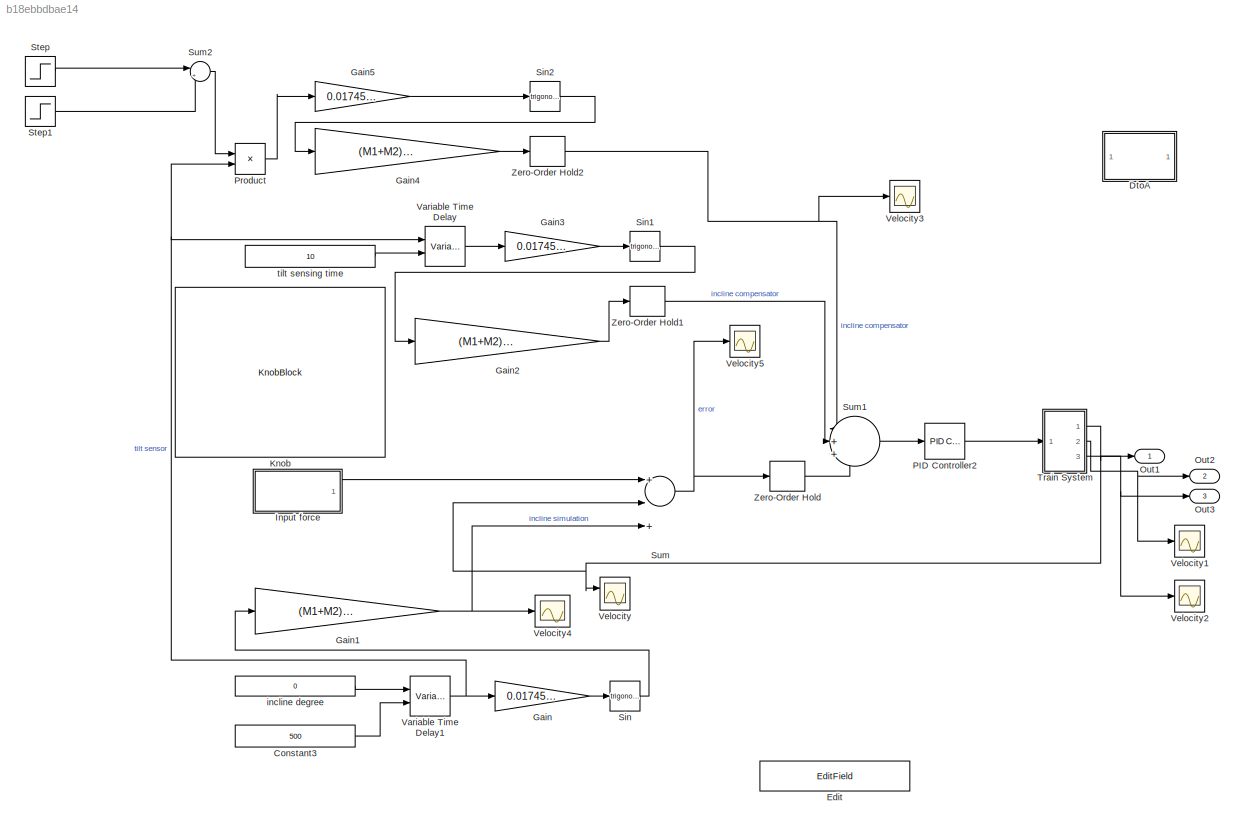
MODEL slx_b18ebbdbae14
KIND model
CONFIG AbsTol = auto
CONFIG EnableMultiTasking = off
CONFIG FixedStep = auto
CONFIG MaxStep = auto
CONFIG MinStep = auto
CONFIG RelTol = 1e-3
CONFIG SampleTimeConstraint = Unconstrained
CONFIG Solver = VariableStepAuto
CONFIG SolverName = VariableStepAuto
CONFIG StartTime = 0.0
CONFIG StopTime = 1000
BLOCK [Constant] Constant3
  Value = 500
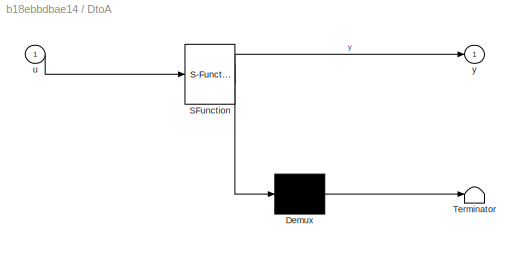
BLOCK [SubSystem] DtoA
  Commented = on
  ErrorFcn = Stateflow.Translate.translate
  PermitHierarchicalResolution = ExplicitOnly
  Ports = [1, 1]
  RequestExecContextInheritance = off
  SFBlockType = MATLAB Function
  TreatAsAtomicUnit = on
BLOCK [Demux] DtoA/ Demux 
  Outputs = 1
  Ports = [1, 1]
BLOCK [S-Function] DtoA/ SFunction 
  EnableBusSupport = on
  FunctionName = sf_sfun
  PortCounts = [1 2]
  Ports = [1, 2]
  SFcnIsStateOwnerBlock = off
  SFunctionDeploymentMode = off
  Tag = Stateflow S-Function uncom 2
BLOCK [Terminator] DtoA/ Terminator 
BLOCK [Inport] DtoA/u
  IconDisplay = Port number
BLOCK [Outport] DtoA/y
  IconDisplay = Port number
BLOCK [EditField] Edit
  Alignment = Center
  LabelPosition = Hide
  ShowInitialText = on
  WebBlockId = 170
BLOCK [Gain] Gain
  Gain = 0.0174533
  OutDataTypeStr = Inherit: Inherit via internal rule
  ParamDataTypeStr = Inherit: Inherit via internal rule
  SaturateOnIntegerOverflow = off
BLOCK [Gain] Gain1
  Gain = (M1+M2) * g * mu * -1
  OutDataTypeStr = Inherit: Inherit via internal rule
  ParamDataTypeStr = Inherit: Inherit via internal rule
  SaturateOnIntegerOverflow = off
BLOCK [Gain] Gain2
  Gain = (M1+M2) * g * mu
  OutDataTypeStr = Inherit: Inherit via internal rule
  ParamDataTypeStr = Inherit: Inherit via internal rule
  SaturateOnIntegerOverflow = off
BLOCK [Gain] Gain3
  Gain = 0.0174533
  OutDataTypeStr = Inherit: Inherit via internal rule
  ParamDataTypeStr = Inherit: Inherit via internal rule
  SaturateOnIntegerOverflow = off
BLOCK [Gain] Gain4
  Gain = (M1+M2) * g * mu
  OutDataTypeStr = Inherit: Inherit via internal rule
  ParamDataTypeStr = Inherit: Inherit via internal rule
  SaturateOnIntegerOverflow = off
BLOCK [Gain] Gain5
  Gain = 0.0174533
  OutDataTypeStr = Inherit: Inherit via internal rule
  ParamDataTypeStr = Inherit: Inherit via internal rule
  SaturateOnIntegerOverflow = off
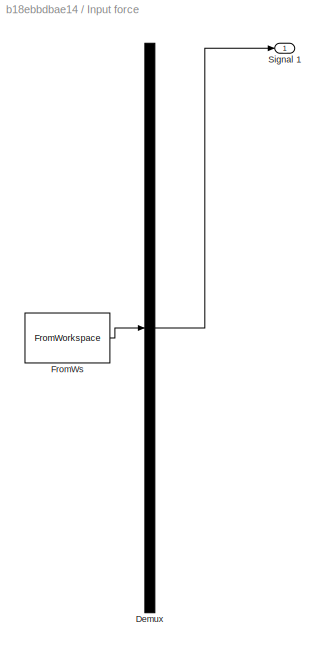
BLOCK [SubSystem] Input force
  ClipboardFcn = sigbuilder_block('clipboard');
  CloseFcn = sigbuilder_block('close');
  ContinueFcn = sigbuilder_block('continue');
  CopyFcn = sigbuilder_block('copy');
  DeleteFcn = sigbuilder_block('delete');
  LoadFcn = sigbuilder_block('load');
  MaskHideContents = on
  ModelCloseFcn = sigbuilder_block('modelClose');
  NameChangeFcn = sigbuilder_block('namechange');
  OpenFcn = sigbuilder_block('open',[437.6 199.2 550.4 400 ]);
  PauseFcn = sigbuilder_block('pause');
  Ports = [0, 1]
  PreSaveFcn = sigbuilder_block('preSave');
  RequestExecContextInheritance = off
  StartFcn = sigbuilder_block('start');
  StopFcn = sigbuilder_block('stop');
  Tag = STV Subsys
BLOCK [Demux] Input force/Demux
  Outputs = 1
  Ports = [1, 1]
  Tag = STV Demux
BLOCK [FromWorkspace] Input force/FromWs
  SampleTime = 0
  Tag = STV FromWs
  VariableName = tuvar
  ZeroCross = on
BLOCK [Outport] Input force/Signal 1
  IconDisplay = Port number
  Tag = STV Outport
BLOCK [KnobBlock] Knob
  ScaleMax = 30
  ScaleMin = -30
  WebBlockId = 168
BLOCK [Outport] Out1
  IconDisplay = Port number
BLOCK [Outport] Out2
  IconDisplay = Port number
  Port = 2
BLOCK [Outport] Out3
  IconDisplay = Port number
  Port = 3
BLOCK [Reference] PID Controller2  REF=simulink/Continuous/PID Controller
  Ports = [1, 1]
  SourceBlock = simulink/Continuous/PID Controller
  SourceProductBaseCode = SL
  SourceProductName = Simulink
  SourceType = PID 1dof
BLOCK [Product] Product
  InputSameDT = off
  OutDataTypeStr = Inherit: Inherit via internal rule
  Ports = [2, 1]
  RndMeth = Floor
  SaturateOnIntegerOverflow = off
BLOCK [Trigonometry] Sin
  Ports = [1, 1]
BLOCK [Trigonometry] Sin1
  Ports = [1, 1]
BLOCK [Trigonometry] Sin2
  Ports = [1, 1]
BLOCK [Step] Step
  SampleTime = 0
  Time = 510
BLOCK [Step] Step1
  After = -1
  SampleTime = 0
  Time = 520
BLOCK [Sum] Sum
  InputSameDT = off
  Inputs = |+|+-|+
  OutDataTypeStr = Inherit: Inherit via internal rule
  Ports = [4, 1]
  SaturateOnIntegerOverflow = off
BLOCK [Sum] Sum1
  IconShape = round
  InputSameDT = off
  Inputs = |++||||||+
  OutDataTypeStr = Inherit: Inherit via internal rule
  Ports = [3, 1]
  SaturateOnIntegerOverflow = off
BLOCK [Sum] Sum2
  IconShape = round
  InputSameDT = off
  Inputs = |++
  OutDataTypeStr = Inherit: Inherit via internal rule
  Ports = [2, 1]
  SaturateOnIntegerOverflow = off
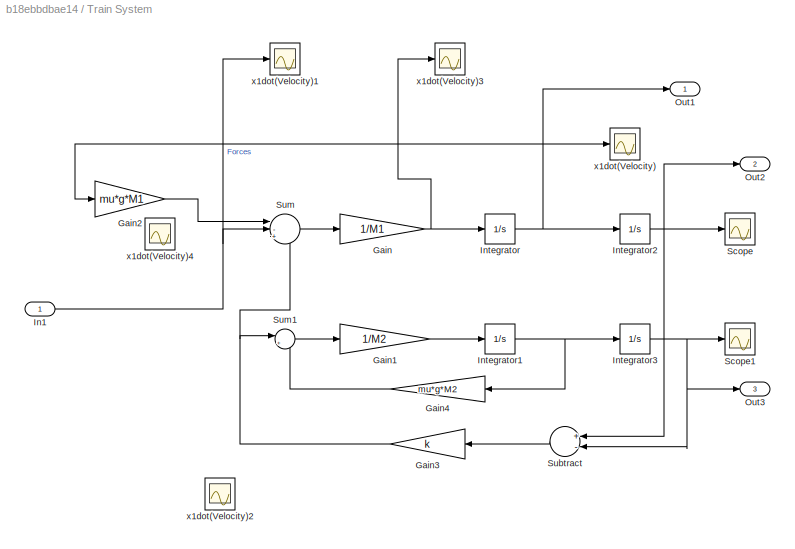
BLOCK [SubSystem] Train System 
  Ports = [1, 3]
  RequestExecContextInheritance = off
BLOCK [Gain] Train System /Gain
  Gain = 1/M1
  OutDataTypeStr = Inherit: Inherit via internal rule
  ParamDataTypeStr = Inherit: Inherit via internal rule
  SaturateOnIntegerOverflow = off
BLOCK [Gain] Train System /Gain1
  Gain = 1/M2
  OutDataTypeStr = Inherit: Inherit via internal rule
  ParamDataTypeStr = Inherit: Inherit via internal rule
  SaturateOnIntegerOverflow = off
BLOCK [Gain] Train System /Gain2
  Gain = mu*g*M1
  OutDataTypeStr = Inherit: Inherit via internal rule
  ParamDataTypeStr = Inherit: Inherit via internal rule
  SaturateOnIntegerOverflow = off
BLOCK [Gain] Train System /Gain3
  Gain = k
  OutDataTypeStr = Inherit: Inherit via internal rule
  ParamDataTypeStr = Inherit: Inherit via internal rule
  SaturateOnIntegerOverflow = off
BLOCK [Gain] Train System /Gain4
  Gain = mu*g*M2
  OutDataTypeStr = Inherit: Inherit via internal rule
  ParamDataTypeStr = Inherit: Inherit via internal rule
  SaturateOnIntegerOverflow = off
BLOCK [Inport] Train System /In1
  IconDisplay = Port number
BLOCK [Integrator] Train System /Integrator
  Ports = [1, 1]
BLOCK [Integrator] Train System /Integrator1
  Ports = [1, 1]
BLOCK [Integrator] Train System /Integrator2
  Ports = [1, 1]
BLOCK [Integrator] Train System /Integrator3
  Ports = [1, 1]
BLOCK [Outport] Train System /Out1
  IconDisplay = Port number
BLOCK [Outport] Train System /Out2
  IconDisplay = Port number
  Port = 2
BLOCK [Outport] Train System /Out3
  IconDisplay = Port number
  Port = 3
BLOCK [Scope] Train System /Scope
  Floating = off
  NumInputPorts = 1
  Ports = [1]
  ScopeSpecificationString = Simulink.scopes.TimeScopeBlockCfg('CurrentConfiguration', extmgr.ConfigurationSet(extmgr.Configuration('Core','General UI',true),extmgr.Configuration('Core','Source UI',true),extmgr.Configuration('Sources','WiredSimulink',true),extmgr.Configuration('Visuals','Time Domain',true,'SerializedDisplays',{struct('MinYLimReal','-2153.18492','MaxYLimReal','19378.66425','YLabelReal','','MinYLimMag','  0.000...<+1357ch>
BLOCK [Scope] Train System /Scope1
  Floating = off
  NumInputPorts = 1
  Ports = [1]
  ScopeSpecificationString = Simulink.scopes.TimeScopeBlockCfg('CurrentConfiguration', extmgr.ConfigurationSet(extmgr.Configuration('Core','General UI',true),extmgr.Configuration('Core','Source UI',true),extmgr.Configuration('Sources','WiredSimulink',true,'DataLoggingVariableName','ScopeData1'),extmgr.Configuration('Visuals','Time Domain',true,'SerializedDisplays',{struct('MinYLimReal','-2151.99908','MaxYLimReal','19367.99169...<+1396ch>
BLOCK [Sum] Train System /Subtract
  InputSameDT = off
  Inputs = +-
  OutDataTypeStr = Inherit: Inherit via internal rule
  Ports = [2, 1]
  SaturateOnIntegerOverflow = off
BLOCK [Sum] Train System /Sum
  IconShape = round
  InputSameDT = off
  Inputs = |-+-
  OutDataTypeStr = Inherit: Inherit via internal rule
  Ports = [3, 1]
  SaturateOnIntegerOverflow = off
BLOCK [Sum] Train System /Sum1
  IconShape = round
  InputSameDT = off
  Inputs = |+-
  OutDataTypeStr = Inherit: Inherit via internal rule
  Ports = [2, 1]
  SaturateOnIntegerOverflow = off
BLOCK [Scope] Train System /x1dot(Velocity)
  Floating = off
  NumInputPorts = 1
  Ports = [1]
  ScopeSpecificationString = Simulink.scopes.TimeScopeBlockCfg('CurrentConfiguration', extmgr.ConfigurationSet(extmgr.Configuration('Core','General UI',true),extmgr.Configuration('Core','Source UI',true),extmgr.Configuration('Sources','WiredSimulink',true,'DataLoggingVariableName','ScopeData2'),extmgr.Configuration('Visuals','Time Domain',true,'SerializedDisplays',{struct('MinYLimReal','-10.04347','MaxYLimReal','90.39125','YL...<+1409ch>
BLOCK [Scope] Train System /x1dot(Velocity)1
  Floating = off
  NumInputPorts = 1
  Ports = [1]
  ScopeSpecificationString = Simulink.scopes.TimeScopeBlockCfg('CurrentConfiguration', extmgr.ConfigurationSet(extmgr.Configuration('Core','General UI',true),extmgr.Configuration('Core','Source UI',true),extmgr.Configuration('Sources','WiredSimulink',true,'DataLoggingVariableName','ScopeData1'),extmgr.Configuration('Visuals','Time Domain',true,'SerializedDisplays',{struct('MinYLimReal','-1518138.88087','MaxYLimReal','13663249...<+1415ch>
BLOCK [Scope] Train System /x1dot(Velocity)2
  Floating = off
  NumInputPorts = 1
  Ports = [1]
  ScopeSpecificationString = Simulink.scopes.TimeScopeBlockCfg('CurrentConfiguration', extmgr.ConfigurationSet(extmgr.Configuration('Core','General UI',true),extmgr.Configuration('Core','Source UI',true),extmgr.Configuration('Sources','WiredSimulink',true,'DataLoggingVariableName','ScopeData2'),extmgr.Configuration('Visuals','Time Domain',true,'SerializedDisplays',{struct('MinYLimReal','-1.00000','MaxYLimReal','1.00000','YLab...<+1368ch>
BLOCK [Scope] Train System /x1dot(Velocity)3
  Floating = off
  NumInputPorts = 1
  Ports = [1]
  ScopeSpecificationString = Simulink.scopes.TimeScopeBlockCfg('CurrentConfiguration', extmgr.ConfigurationSet(extmgr.Configuration('Core','General UI',true),extmgr.Configuration('Core','Source UI',true),extmgr.Configuration('Sources','WiredSimulink',true,'DataLoggingVariableName','ScopeData3'),extmgr.Configuration('Visuals','Time Domain',true,'SerializedDisplays',{struct('MinYLimReal','-0.29397','MaxYLimReal','0.72044','YLab...<+1363ch>
BLOCK [Scope] Train System /x1dot(Velocity)4
  Floating = off
  NumInputPorts = 1
  Ports = [1]
  ScopeSpecificationString = Simulink.scopes.TimeScopeBlockCfg('CurrentConfiguration', extmgr.ConfigurationSet(extmgr.Configuration('Core','General UI',true),extmgr.Configuration('Core','Source UI',true),extmgr.Configuration('Sources','WiredSimulink',true,'DataLoggingVariableName','ScopeData2'),extmgr.Configuration('Visuals','Time Domain',true,'SerializedDisplays',{struct('MinYLimReal','-1.00000','MaxYLimReal','1.00000','YLab...<+1368ch>
BLOCK [VariableTransportDelay] Variable Time Delay
  MaximumDelay = 9999
  Ports = [2, 1]
BLOCK [VariableTransportDelay] Variable Time Delay1
  MaximumDelay = 9999
  Ports = [2, 1]
BLOCK [Scope] Velocity
  Floating = off
  NumInputPorts = 2
  Ports = [2]
  ScopeSpecificationString = Simulink.scopes.TimeScopeBlockCfg('CurrentConfiguration', extmgr.ConfigurationSet(extmgr.Configuration('Core','General UI',true),extmgr.Configuration('Core','Source UI',true),extmgr.Configuration('Sources','WiredSimulink',true,'DataLoggingVariableName','ScopeData1'),extmgr.Configuration('Visuals','Time Domain',true,'SerializedDisplays',{struct('MinYLimReal','-10.00209','MaxYLimReal','90.01879','YL...<+1467ch>
BLOCK [Scope] Velocity1
  Floating = off
  NumInputPorts = 1
  Ports = [1]
  ScopeSpecificationString = Simulink.scopes.TimeScopeBlockCfg('CurrentConfiguration', extmgr.ConfigurationSet(extmgr.Configuration('Core','General UI',true),extmgr.Configuration('Core','Source UI',true),extmgr.Configuration('Sources','WiredSimulink',true,'DataLoggingVariableName','ScopeData3'),extmgr.Configuration('Visuals','Time Domain',true,'SerializedDisplays',{struct('MinYLimReal','-8145.01923','MaxYLimReal','73305.17305...<+1431ch>
BLOCK [Scope] Velocity2
  Floating = off
  NumInputPorts = 1
  Ports = [1]
  ScopeSpecificationString = Simulink.scopes.TimeScopeBlockCfg('CurrentConfiguration', extmgr.ConfigurationSet(extmgr.Configuration('Core','General UI',true),extmgr.Configuration('Core','Source UI',true),extmgr.Configuration('Sources','WiredSimulink',true,'DataLoggingVariableName','ScopeData4'),extmgr.Configuration('Visuals','Time Domain',true,'SerializedDisplays',{struct('MinYLimReal','-2151.99908','MaxYLimReal','19367.99169...<+1431ch>
BLOCK [Scope] Velocity3
  Floating = off
  NumInputPorts = 1
  Ports = [1]
  ScopeSpecificationString = Simulink.scopes.TimeScopeBlockCfg('CurrentConfiguration', extmgr.ConfigurationSet(extmgr.Configuration('Core','General UI',true),extmgr.Configuration('Core','Source UI',true),extmgr.Configuration('Sources','WiredSimulink',true,'DataLoggingVariableName','ScopeData1'),extmgr.Configuration('Visuals','Time Domain',true,'SerializedDisplays',{struct('MinYLimReal','-1.00000','MaxYLimReal','1.00000','YLab...<+1409ch>
BLOCK [Scope] Velocity4
  Floating = off
  NumInputPorts = 1
  Ports = [1]
  ScopeSpecificationString = Simulink.scopes.TimeScopeBlockCfg('CurrentConfiguration', extmgr.ConfigurationSet(extmgr.Configuration('Core','General UI',true),extmgr.Configuration('Core','Source UI',true),extmgr.Configuration('Sources','WiredSimulink',true,'DataLoggingVariableName','ScopeData1'),extmgr.Configuration('Visuals','Time Domain',true,'SerializedDisplays',{struct('MinYLimReal','-51331.70559','MaxYLimReal','5703.52284...<+1436ch>
BLOCK [Scope] Velocity5
  Floating = off
  NumInputPorts = 1
  Ports = [1]
  ScopeSpecificationString = Simulink.scopes.TimeScopeBlockCfg('CurrentConfiguration', extmgr.ConfigurationSet(extmgr.Configuration('Core','General UI',true),extmgr.Configuration('Core','Source UI',true),extmgr.Configuration('Sources','WiredSimulink',true,'DataLoggingVariableName','ScopeData3'),extmgr.Configuration('Visuals','Time Domain',true,'SerializedDisplays',{struct('MinYLimReal','-9149889.00868','MaxYLimReal','13349989...<+1445ch>
BLOCK [ZeroOrderHold] Zero-Order Hold
  SampleTime = 0.1
BLOCK [ZeroOrderHold] Zero-Order Hold1
  SampleTime = 0.1
BLOCK [ZeroOrderHold] Zero-Order Hold2
  SampleTime = 0.1
BLOCK [Constant] incline degree
  Value = 0
BLOCK [Constant] tilt sensing time
  Value = 10
LINE Constant3:1 -> Variable Time Delay1:2
NET Gain1:1 -> Sum:4, Velocity4:1
LINE Gain2:1 -> Zero-Order Hold1:1
LINE Gain3:1 -> Sin1:1
LINE Gain4:1 -> Zero-Order Hold2:1
LINE Gain5:1 -> Sin2:1
LINE Gain:1 -> Sin:1
LINE Input force:1 -> Sum:2
LINE PID Controller2:1 -> Train System :1
LINE Product:1 -> Gain5:1
LINE Sin1:1 -> Gain2:1
LINE Sin2:1 -> Gain4:1
LINE Sin:1 -> Gain1:1
LINE Step1:1 -> Sum2:2
LINE Step:1 -> Sum2:1
LINE Sum1:1 -> PID Controller2:1
LINE Sum2:1 -> Product:1
NET Sum:1 -> Velocity5:1, Zero-Order Hold:1
LINE Train System /Gain1:1 -> Train System /Integrator1:1
LINE Train System /Gain2:1 -> Train System /Sum:1
NET Train System /Gain3:1 -> Train System /Sum1:1, Train System /Sum:3
LINE Train System /Gain4:1 -> Train System /Sum1:2
NET Train System /Gain:1 -> Train System /Integrator:1, Train System /x1dot(Velocity)3:1
NET Train System /In1:1 -> Train System /Sum:2, Train System /x1dot(Velocity)1:1
NET Train System /Integrator1:1 -> Train System /Gain4:1, Train System /Integrator3:1
NET Train System /Integrator2:1 -> Train System /Out2:1, Train System /Scope:1, Train System /Subtract:1
NET Train System /Integrator3:1 -> Train System /Out3:1, Train System /Scope1:1, Train System /Subtract:2
NET Train System /Integrator:1 -> Train System /Gain2:1, Train System /Integrator2:1, Train System /Out1:1, Train System /x1dot(Velocity):1
LINE Train System /Subtract:1 -> Train System /Gain3:1
LINE Train System /Sum1:1 -> Train System /Gain1:1
LINE Train System /Sum:1 -> Train System /Gain:1
NET Train System :1 -> Out1:1, Sum:3, Velocity:1
NET Train System :2 -> Out2:1, Velocity1:1
NET Train System :3 -> Out3:1, Velocity2:1
NET Variable Time Delay1:1 -> Gain:1, Product:2, Variable Time Delay:1
LINE Variable Time Delay:1 -> Gain3:1
LINE Zero-Order Hold1:1 -> Sum1:2
NET Zero-Order Hold2:1 -> Sum1:1, Velocity3:1
LINE Zero-Order Hold:1 -> Sum1:3
LINE incline degree:1 -> Variable Time Delay1:1
LINE tilt sensing time:1 -> Variable Time Delay:2
note: NET lines group one-source signal fan-out (src -> all destinations, sorted); 1:1 wires keep LINE
CHART DtoA states=1 transitions=1
  STATE_LABEL 'eML_blk_kernel()'
  STATE_LABEL "SCRIPT:\nfunction y = fcn(u)\ny = d2c(u,'method')\n\n"
